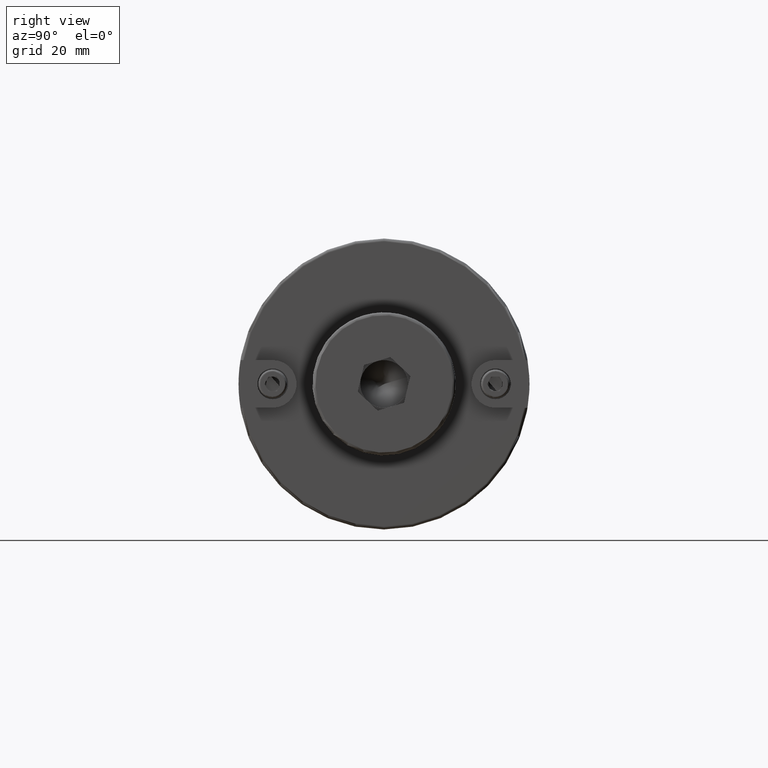
[diagram: clean part render]
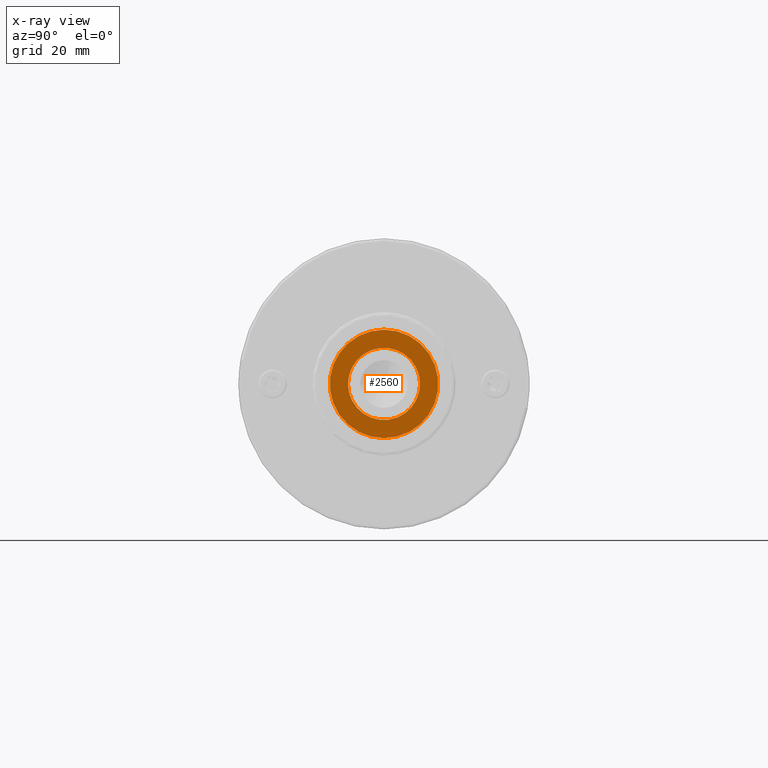
[diagram: x-ray — body ghosted, one internal face saturated and labeled with its STEP entity id]
A machine part, right view, then the same camera in x-ray: the body is ghosted and one INTERNAL B-rep face — a face not visible from any outside direction — is saturated and labeled: STEP entity #2560.
In plain terms, the highlighted planar face has unit normal (1, 0, 0).
Its self-contained STEP definition (entity closure, byte-faithful):
#183=FACE_BOUND('',#532,.T.);
#238=CIRCLE('',#2850,18.05);
#242=CIRCLE('',#2856,12.);
#374=FACE_OUTER_BOUND('',#531,.T.);
#531=EDGE_LOOP('',(#1842));
#532=EDGE_LOOP('',(#1843));
#1103=VERTEX_POINT('',#4287);
#1106=VERTEX_POINT('',#4297);
#1382=EDGE_CURVE('',#1103,#1103,#238,.T.);
#1387=EDGE_CURVE('',#1106,#1106,#242,.T.);
#1842=ORIENTED_EDGE('',*,*,#1382,.F.);
#1843=ORIENTED_EDGE('',*,*,#1387,.F.);
#2472=PLANE('',#2855);
#2560=ADVANCED_FACE('',(#374,#183),#2472,.T.);
#2850=AXIS2_PLACEMENT_3D('',#4288,#3270,#3271);
#2855=AXIS2_PLACEMENT_3D('',#4296,#3281,#3282);
#2856=AXIS2_PLACEMENT_3D('',#4298,#3283,#3284);
#3270=DIRECTION('center_axis',(-1.,0.,0.));
#3271=DIRECTION('ref_axis',(0.,-1.,1.83697019872103E-16));
#3281=DIRECTION('center_axis',(1.,0.,0.));
#3282=DIRECTION('ref_axis',(0.,0.,-1.));
#3283=DIRECTION('center_axis',(1.,0.,0.));
#3284=DIRECTION('ref_axis',(0.,0.,-1.));
#4287=CARTESIAN_POINT('',(125.47,-2.21048747246097E-15,18.05));
#4288=CARTESIAN_POINT('Origin',(125.47,0.,0.));
#4296=CARTESIAN_POINT('Origin',(125.47,12.,0.));
#4297=CARTESIAN_POINT('',(125.47,-12.,-1.46957615897682E-15));
#4298=CARTESIAN_POINT('Origin',(125.47,0.,0.));